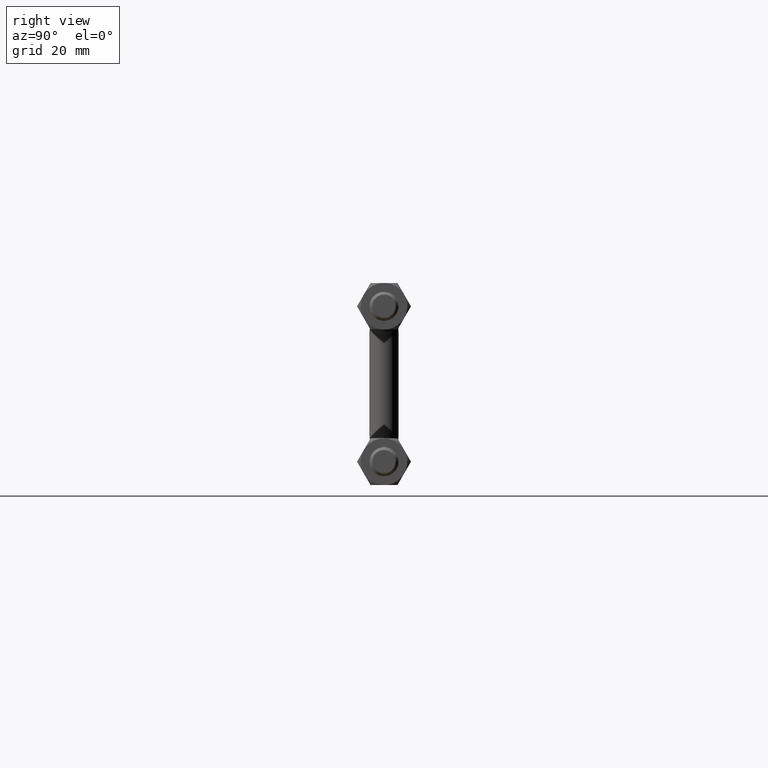
[diagram: clean part render]
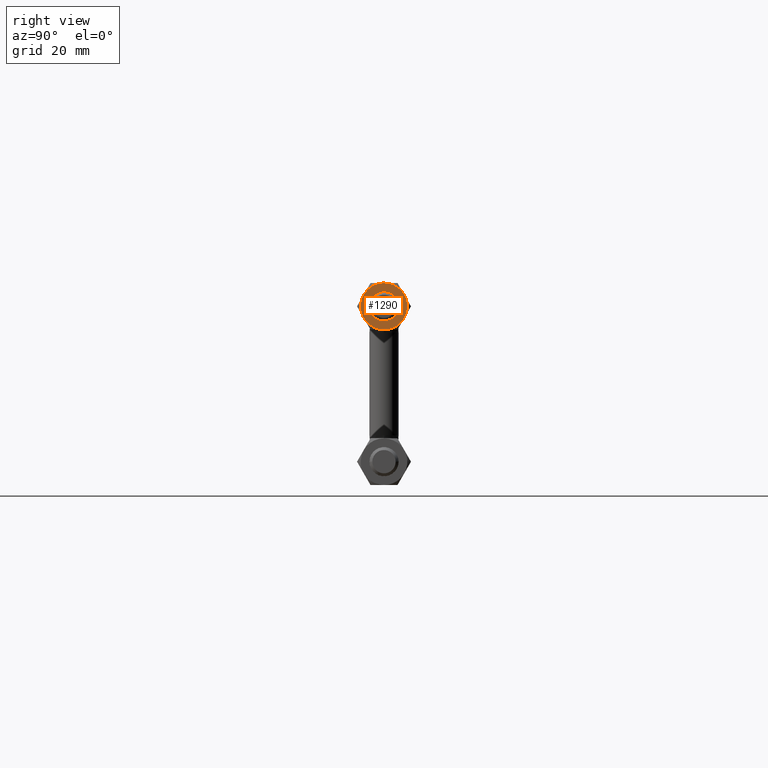
[diagram: same view with one face highlighted and labeled with its STEP entity id]
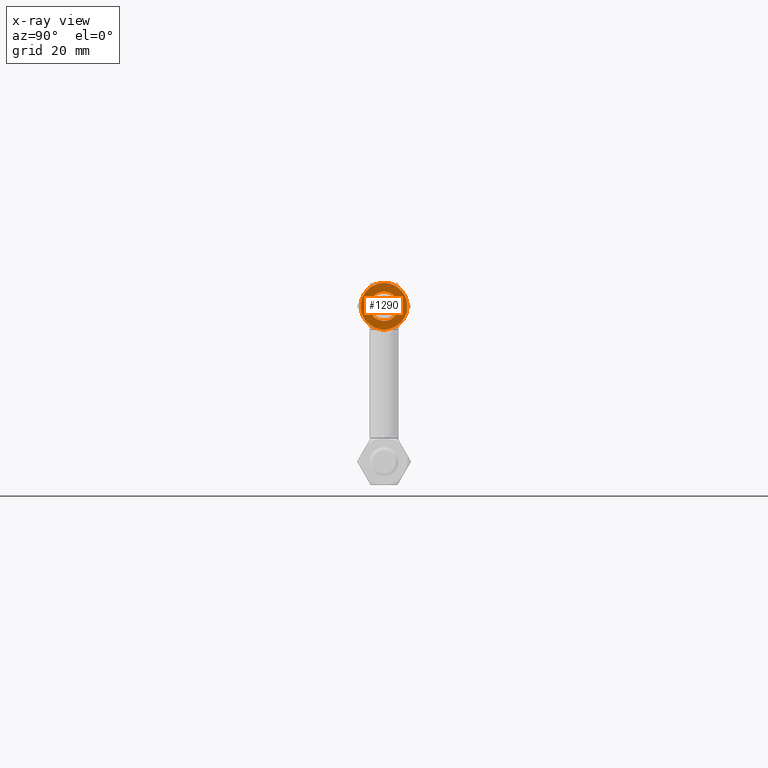
[diagram: x-ray of the same camera — body ghosted, the highlighted face saturated]
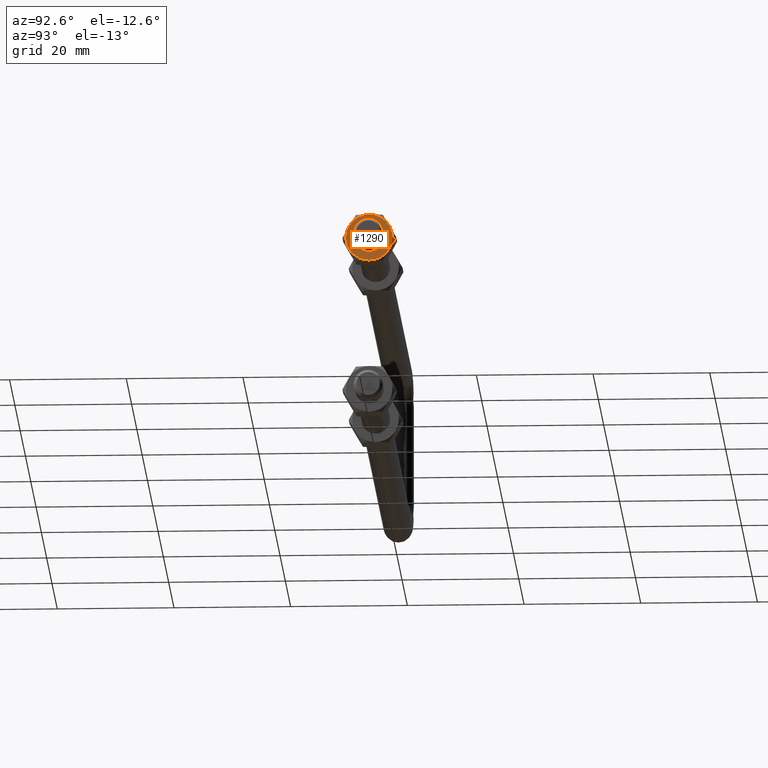
[diagram: same view with one face highlighted and labeled with its STEP entity id]
A machine part, right view. The second image highlights one B-rep face of the part: STEP entity #1290.
The next image is the same camera in x-ray: the body ghosted, the highlighted face saturated — about 0% of this face is hidden behind the body in this view.
A second angle (auxiliary view) of the same face is appended — the face is thin or edge-on in the first view.
In plain terms, the highlighted planar face has unit normal (1, -0, -0).
Its self-contained STEP definition (entity closure, byte-faithful):
#31 = EDGE_LOOP ( 'NONE', ( #897, #1595, #1186, #110, #1690, #1202 ) ) ;
#62 = CARTESIAN_POINT ( 'NONE',  ( 2.499999999999999600, 0.0000000000000000000, -2.710505431213761100E-016 ) ) ;
#72 = AXIS2_PLACEMENT_3D ( 'NONE', #1300, #475, #115 ) ;
#80 = CARTESIAN_POINT ( 'NONE',  ( -4.000000000000000000, -4.489687544871537500E-011, -7.306370192989596200E-039 ) ) ;
#86 = CARTESIAN_POINT ( 'NONE',  ( -2.000000000339047000, 3.464101615123128300, -9.056140185607305800E-011 ) ) ;
#110 = ORIENTED_EDGE ( 'NONE', *, *, #816, .T. ) ;
#115 = DIRECTION ( 'NONE',  ( -1.000000000000000000, 1.776356839400250500E-015, 0.0000000000000000000 ) ) ;
#123 = CARTESIAN_POINT ( 'NONE',  ( 0.0000000000000000000, 0.0000000000000000000, 0.0000000000000000000 ) ) ;
#147 = CARTESIAN_POINT ( 'NONE',  ( 1.999999999475822600, 3.464101615621511900, 0.0000000000000000000 ) ) ;
#161 = DIRECTION ( 'NONE',  ( 1.000000000000000000, 0.0000000000000000000, 0.0000000000000000000 ) ) ;
#165 = EDGE_CURVE ( 'NONE', #944, #1107, #511, .T. ) ;
#171 = AXIS2_PLACEMENT_3D ( 'NONE', #123, #780, #1090 ) ;
#285 = CARTESIAN_POINT ( 'NONE',  ( 4.000000000000000000, -8.204128258829051200E-010, -5.007715326411504600E-016 ) ) ;
#328 = CARTESIAN_POINT ( 'NONE',  ( 0.0000000000000000000, 0.0000000000000000000, -2.710505431213761100E-016 ) ) ;
#356 = CARTESIAN_POINT ( 'NONE',  ( 1.999999999786875400, -3.464101615441925700, 0.0000000000000000000 ) ) ;
#385 = AXIS2_PLACEMENT_3D ( 'NONE', #1095, #960, #1502 ) ;
#468 = AXIS2_PLACEMENT_3D ( 'NONE', #558, #1021, #1508 ) ;
#470 = VERTEX_POINT ( 'NONE', #80 ) ;
#475 = DIRECTION ( 'NONE',  ( -0.0000000000000000000, -0.0000000000000000000, 1.000000000000000000 ) ) ;
#483 = CIRCLE ( 'NONE', #171, 4.000000000000000000 ) ;
#511 = CIRCLE ( 'NONE', #468, 4.000000000000000000 ) ;
#516 = DIRECTION ( 'NONE',  ( -0.0000000000000000000, -0.0000000000000000000, 1.000000000000000000 ) ) ;
#554 = ORIENTED_EDGE ( 'NONE', *, *, #814, .F. ) ;
#558 = CARTESIAN_POINT ( 'NONE',  ( 0.0000000000000000000, 0.0000000000000000000, 0.0000000000000000000 ) ) ;
#570 = EDGE_CURVE ( 'NONE', #470, #944, #888, .T. ) ;
#571 = AXIS2_PLACEMENT_3D ( 'NONE', #1646, #516, #1076 ) ;
#608 = CARTESIAN_POINT ( 'NONE',  ( 0.0000000000000000000, 0.0000000000000000000, 0.0000000000000000000 ) ) ;
#635 = DIRECTION ( 'NONE',  ( 0.0000000000000000000, 0.0000000000000000000, 1.000000000000000000 ) ) ;
#702 = EDGE_CURVE ( 'NONE', #1107, #1006, #1399, .T. ) ;
#745 = DIRECTION ( 'NONE',  ( 1.000000000000000000, 0.0000000000000000000, 0.0000000000000000000 ) ) ;
#780 = DIRECTION ( 'NONE',  ( -0.0000000000000000000, -0.0000000000000000000, 1.000000000000000000 ) ) ;
#793 = VERTEX_POINT ( 'NONE', #1115 ) ;
#809 = AXIS2_PLACEMENT_3D ( 'NONE', #1050, #1375, #745 ) ;
#814 = EDGE_CURVE ( 'NONE', #1201, #793, #919, .T. ) ;
#816 = EDGE_CURVE ( 'NONE', #1006, #1176, #1001, .T. ) ;
#823 = DIRECTION ( 'NONE',  ( 1.000000000000000000, 0.0000000000000000000, 0.0000000000000000000 ) ) ;
#827 = EDGE_CURVE ( 'NONE', #1067, #470, #1455, .T. ) ;
#888 = CIRCLE ( 'NONE', #571, 4.000000000000000000 ) ;
#897 = ORIENTED_EDGE ( 'NONE', *, *, #570, .T. ) ;
#919 = CIRCLE ( 'NONE', #809, 2.499999999999999600 ) ;
#944 = VERTEX_POINT ( 'NONE', #1573 ) ;
#951 = ORIENTED_EDGE ( 'NONE', *, *, #1042, .F. ) ;
#960 = DIRECTION ( 'NONE',  ( -0.0000000000000000000, -0.0000000000000000000, 1.000000000000000000 ) ) ;
#974 = AXIS2_PLACEMENT_3D ( 'NONE', #328, #1204, #161 ) ;
#996 = EDGE_LOOP ( 'NONE', ( #554, #951 ) ) ;
#1001 = CIRCLE ( 'NONE', #72, 4.000000000000000000 ) ;
#1006 = VERTEX_POINT ( 'NONE', #285 ) ;
#1021 = DIRECTION ( 'NONE',  ( -0.0000000000000000000, -0.0000000000000000000, 1.000000000000000000 ) ) ;
#1042 = EDGE_CURVE ( 'NONE', #793, #1201, #1428, .T. ) ;
#1050 = CARTESIAN_POINT ( 'NONE',  ( 0.0000000000000000000, 0.0000000000000000000, -2.710505431213761100E-016 ) ) ;
#1067 = VERTEX_POINT ( 'NONE', #86 ) ;
#1076 = DIRECTION ( 'NONE',  ( -1.000000000000000000, 0.0000000000000000000, 0.0000000000000000000 ) ) ;
#1090 = DIRECTION ( 'NONE',  ( -1.000000000000000000, -8.881784197001252300E-016, 0.0000000000000000000 ) ) ;
#1095 = CARTESIAN_POINT ( 'NONE',  ( 0.0000000000000000000, 0.0000000000000000000, -5.007715326411504600E-016 ) ) ;
#1107 = VERTEX_POINT ( 'NONE', #356 ) ;
#1115 = CARTESIAN_POINT ( 'NONE',  ( -2.499999999999999600, 3.061616997868382600E-016, -2.710505431213761100E-016 ) ) ;
#1124 = CARTESIAN_POINT ( 'NONE',  ( -4.048000000000000000, -4.048000000000000000, 0.0000000000000000000 ) ) ;
#1176 = VERTEX_POINT ( 'NONE', #147 ) ;
#1186 = ORIENTED_EDGE ( 'NONE', *, *, #702, .T. ) ;
#1201 = VERTEX_POINT ( 'NONE', #62 ) ;
#1202 = ORIENTED_EDGE ( 'NONE', *, *, #827, .T. ) ;
#1204 = DIRECTION ( 'NONE',  ( 0.0000000000000000000, -0.0000000000000000000, 1.000000000000000000 ) ) ;
#1275 = PLANE ( 'NONE',  #1395 ) ;
#1290 = ADVANCED_FACE ( 'NONE', ( #1487, #1459 ), #1275, .T. ) ;
#1300 = CARTESIAN_POINT ( 'NONE',  ( 0.0000000000000000000, 0.0000000000000000000, 0.0000000000000000000 ) ) ;
#1358 = DIRECTION ( 'NONE',  ( -0.0000000000000000000, -0.0000000000000000000, 1.000000000000000000 ) ) ;
#1375 = DIRECTION ( 'NONE',  ( 0.0000000000000000000, -0.0000000000000000000, 1.000000000000000000 ) ) ;
#1394 = EDGE_CURVE ( 'NONE', #1176, #1067, #483, .T. ) ;
#1395 = AXIS2_PLACEMENT_3D ( 'NONE', #1124, #635, #823 ) ;
#1399 = CIRCLE ( 'NONE', #385, 4.000000000000000900 ) ;
#1428 = CIRCLE ( 'NONE', #974, 2.499999999999999600 ) ;
#1455 = CIRCLE ( 'NONE', #1538, 4.000000000000000000 ) ;
#1459 = FACE_OUTER_BOUND ( 'NONE', #31, .T. ) ;
#1487 = FACE_BOUND ( 'NONE', #996, .T. ) ;
#1502 = DIRECTION ( 'NONE',  ( -1.000000000000000000, 0.0000000000000000000, 0.0000000000000000000 ) ) ;
#1508 = DIRECTION ( 'NONE',  ( -1.000000000000000000, 0.0000000000000000000, 0.0000000000000000000 ) ) ;
#1538 = AXIS2_PLACEMENT_3D ( 'NONE', #608, #1358, #1552 ) ;
#1552 = DIRECTION ( 'NONE',  ( -1.000000000000000000, 0.0000000000000000000, 0.0000000000000000000 ) ) ;
#1573 = CARTESIAN_POINT ( 'NONE',  ( -1.999999999950229100, -3.464101615347612700, -9.056133925963146900E-011 ) ) ;
#1595 = ORIENTED_EDGE ( 'NONE', *, *, #165, .T. ) ;
#1646 = CARTESIAN_POINT ( 'NONE',  ( 0.0000000000000000000, 0.0000000000000000000, 0.0000000000000000000 ) ) ;
#1690 = ORIENTED_EDGE ( 'NONE', *, *, #1394, .T. ) ;